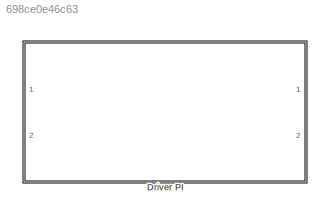
MODEL slx_698ce0e46c63
KIND library
CONFIG AbsTol = auto
CONFIG EnableMultiTasking = off
CONFIG FixedStep = auto
CONFIG MaxStep = auto
CONFIG MinStep = auto
CONFIG RelTol = 1e-3
CONFIG SampleTimeConstraint = Unconstrained
CONFIG Solver = VariableStepAuto
CONFIG SolverName = VariableStepAuto
CONFIG StartTime = 0.0
CONFIG StopTime = 10.0
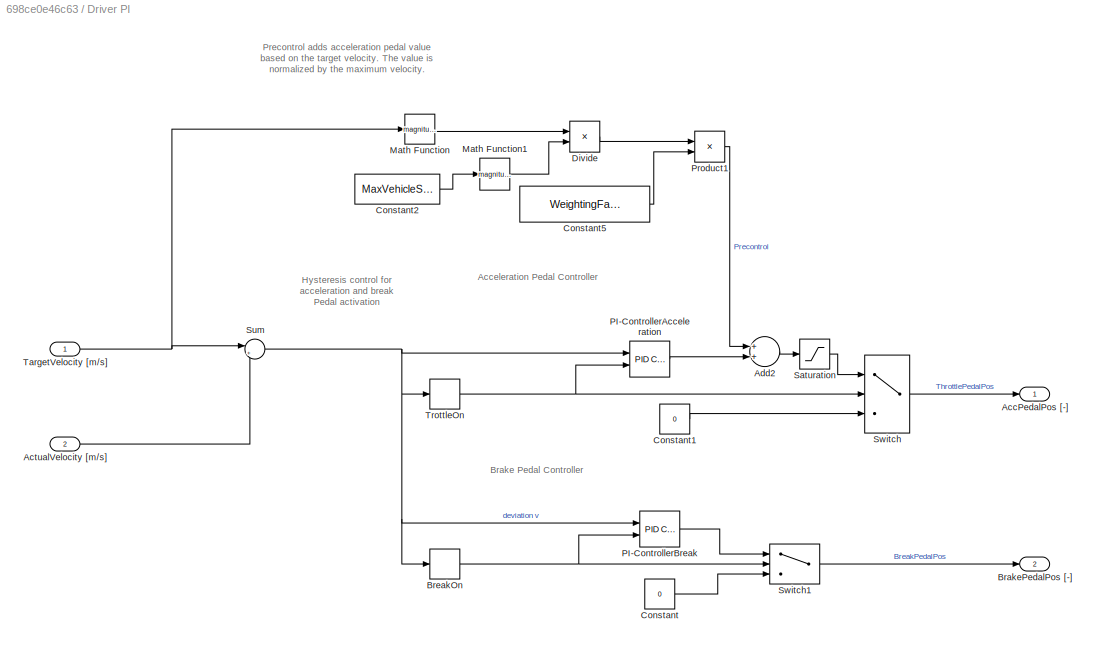
BLOCK [SubSystem] Driver PI
  Ports = [2, 2]
  RequestExecContextInheritance = off
BLOCK [Outport] Driver PI/AccPedalPos [-]
  IconDisplay = Port number
  SampleTime = GlobalSampleTime
BLOCK [Inport] Driver PI/ActualVelocity [m//s]
  IconDisplay = Port number
  Port = 2
  SampleTime = LocalSampleTime
BLOCK [Sum] Driver PI/Add2
  InputSameDT = off
  OutDataTypeStr = Inherit: Inherit via internal rule
  Ports = [2, 1]
  SaturateOnIntegerOverflow = off
BLOCK [Outport] Driver PI/BrakePedalPos [-]
  IconDisplay = Port number
  Port = 2
  SampleTime = GlobalSampleTime
BLOCK [Relay] Driver PI/BreakOn
  InputProcessing = Elements as channels (sample based)
  OffOutputValue = 1
  OffSwitchValue = -hysteresis
  OnOutputValue = 0
  OnSwitchValue = hysteresis
BLOCK [Constant] Driver PI/Constant
  Value = 0
BLOCK [Constant] Driver PI/Constant1
  Value = 0
BLOCK [Constant] Driver PI/Constant2
  Value = MaxVehicleSpeed
BLOCK [Constant] Driver PI/Constant5
  Value = WeightingFactorPrecontrol
BLOCK [Product] Driver PI/Divide
  InputSameDT = off
  Inputs = */
  OutDataTypeStr = Inherit: Inherit via internal rule
  Ports = [2, 1]
  RndMeth = Floor
  SaturateOnIntegerOverflow = off
BLOCK [Math] Driver PI/Math Function
  Operator = magnitude^2
  Ports = [1, 1]
BLOCK [Math] Driver PI/Math Function1
  Operator = magnitude^2
  Ports = [1, 1]
BLOCK [Reference] Driver PI/PI-ControllerAcceleration  REF=simulink/Continuous/PID Controller
  Ports = [2, 1]
  SourceBlock = simulink/Continuous/PID Controller
  SourceProductBaseCode = SL
  SourceProductName = Simulink
  SourceType = PID 1dof
BLOCK [Reference] Driver PI/PI-ControllerBreak  REF=simulink/Continuous/PID Controller
  Ports = [2, 1]
  SourceBlock = simulink/Continuous/PID Controller
  SourceProductBaseCode = SL
  SourceProductName = Simulink
  SourceType = PID 1dof
BLOCK [Product] Driver PI/Product1
  InputSameDT = off
  OutDataTypeStr = Inherit: Inherit via internal rule
  Ports = [2, 1]
  RndMeth = Floor
  SaturateOnIntegerOverflow = off
BLOCK [Saturate] Driver PI/Saturation
  InputPortMap = u0
  LowerLimit = 0
  Ports = [1, 1]
  UpperLimit = 1
BLOCK [Sum] Driver PI/Sum
  IconShape = round
  InputSameDT = off
  Inputs = |+-
  OutDataTypeStr = Inherit: Inherit via internal rule
  Ports = [2, 1]
  SaturateOnIntegerOverflow = off
BLOCK [Switch] Driver PI/Switch
  Criteria = u2 > Threshold
  InputSameDT = off
  SaturateOnIntegerOverflow = off
BLOCK [Switch] Driver PI/Switch1
  Criteria = u2 > Threshold
  InputSameDT = off
  SaturateOnIntegerOverflow = off
BLOCK [Inport] Driver PI/TargetVelocity [m//s]
  IconDisplay = Port number
  SampleTime = LocalSampleTime
BLOCK [Relay] Driver PI/TrottleOn
  InputProcessing = Elements as channels (sample based)
  OffSwitchValue = -hysteresis
  OnSwitchValue = hysteresis
ANNOTATION Driver PI: Acceleration Pedal Controller
ANNOTATION Driver PI: Brake Pedal Controller
ANNOTATION Driver PI: Hysteresis control for acceleration and break Pedal activation
ANNOTATION Driver PI: Precontrol adds acceleration pedal value based on the target velocity. The value is normalized by the maximum velocity.
LINE Driver PI/ActualVelocity [m//s]:1 -> Driver PI/Sum:2
LINE Driver PI/Add2:1 -> Driver PI/Saturation:1
NET Driver PI/BreakOn:1 -> Driver PI/PI-ControllerBreak:2, Driver PI/Switch1:2
LINE Driver PI/Constant1:1 -> Driver PI/Switch:3
LINE Driver PI/Constant2:1 -> Driver PI/Math Function1:1
LINE Driver PI/Constant5:1 -> Driver PI/Product1:2
LINE Driver PI/Constant:1 -> Driver PI/Switch1:3
LINE Driver PI/Divide:1 -> Driver PI/Product1:1
LINE Driver PI/Math Function1:1 -> Driver PI/Divide:2
LINE Driver PI/Math Function:1 -> Driver PI/Divide:1
LINE Driver PI/PI-ControllerAcceleration:1 -> Driver PI/Add2:2
LINE Driver PI/PI-ControllerBreak:1 -> Driver PI/Switch1:1
LINE Driver PI/Product1:1 -> Driver PI/Add2:1
LINE Driver PI/Saturation:1 -> Driver PI/Switch:1
NET Driver PI/Sum:1 -> Driver PI/BreakOn:1, Driver PI/PI-ControllerAcceleration:1, Driver PI/PI-ControllerBreak:1, Driver PI/TrottleOn:1
LINE Driver PI/Switch1:1 -> Driver PI/BrakePedalPos [-]:1
LINE Driver PI/Switch:1 -> Driver PI/AccPedalPos [-]:1
NET Driver PI/TargetVelocity [m//s]:1 -> Driver PI/Math Function:1, Driver PI/Sum:1
NET Driver PI/TrottleOn:1 -> Driver PI/PI-ControllerAcceleration:2, Driver PI/Switch:2
note: NET lines group one-source signal fan-out (src -> all destinations, sorted); 1:1 wires keep LINE
